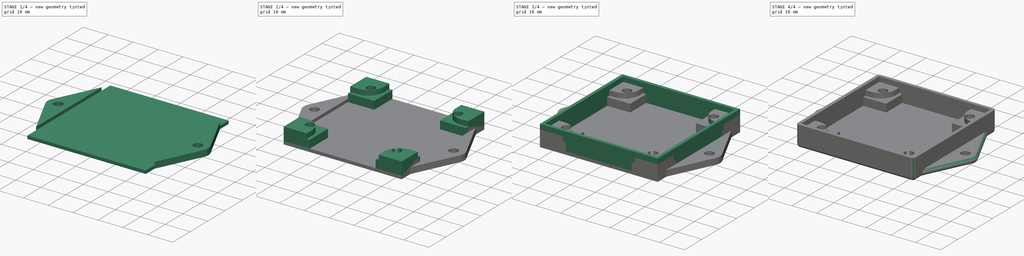
[diagram: build sequence overview — one tinted view per stage of 4, left to right]
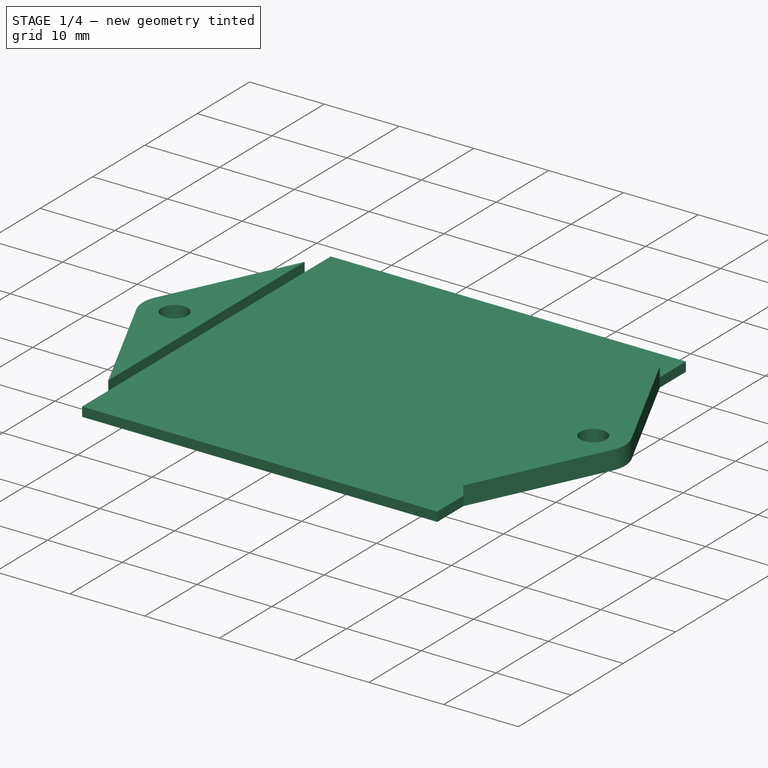
[diagram: stage 1 of 4 — iso view after this stage's code; geometry added in this stage tinted green]
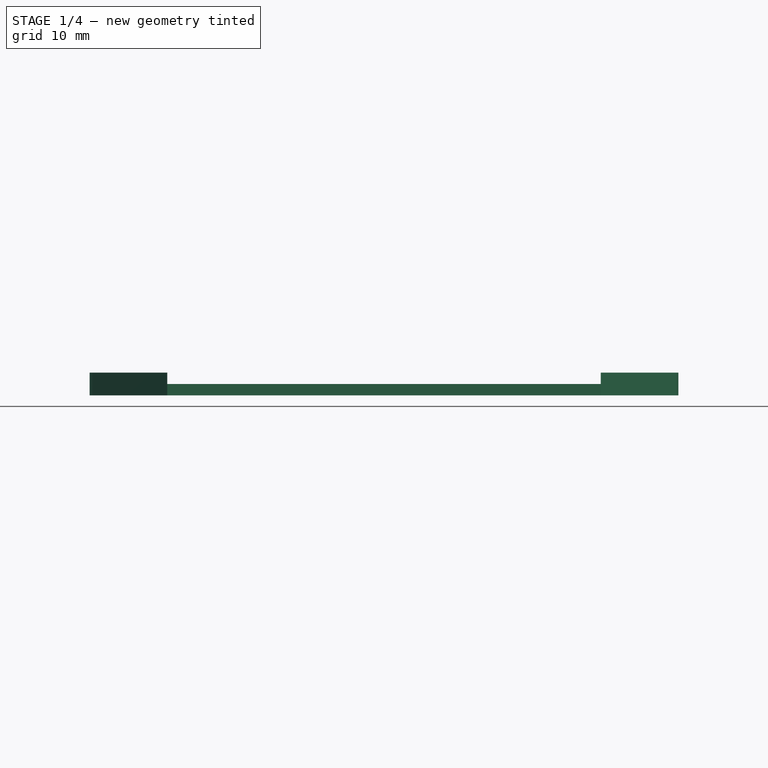
[diagram: stage 1 of 4 — front view after this stage's code; geometry added in this stage tinted green]
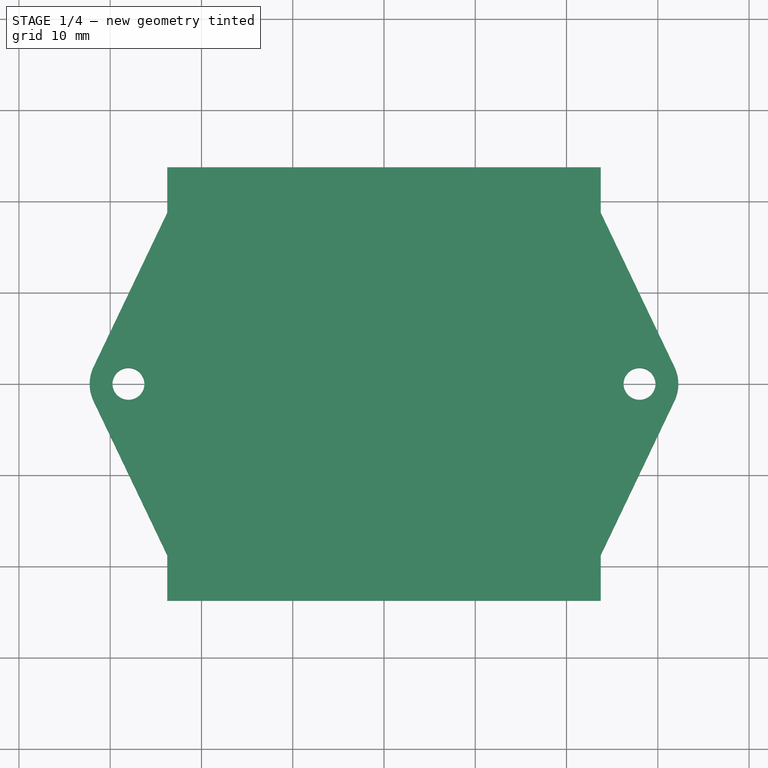
[diagram: stage 1 of 4 — top view after this stage's code; geometry added in this stage tinted green]
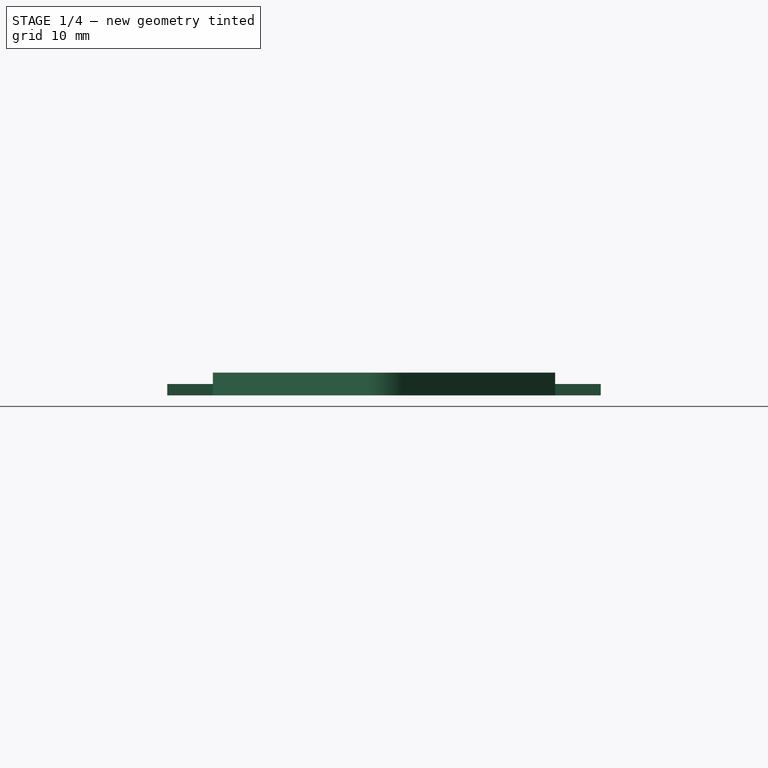
[diagram: stage 1 of 4 — right view after this stage's code; geometry added in this stage tinted green]
FCSTD DOCUMENT  (FreeCAD 0.16R6712 (Git))
Label: TPBox
License: All rights reserved
LicenseURL: http://en.wikipedia.org/wiki/All_rights_reserved
objects: Sketcher::SketchObject×7, PartDesign::Pad×5, PartDesign::Pocket×2, PartDesign::Fillet×2, Spreadsheet::Sheet×1, Part::MultiFuse×1
note: 24 computed .brp shape members not serialized (recipe doc carries the construction recipe); baked Part::Feature solids carry a one-line shape summary decoded from their .brp

FEATURE [Spreadsheet::Sheet] Spreadsheet  label="Data"
  cells = B2=WallThickness; C2(WallThickness)=1.25; B3=HoleDist_X; C3(HoleDist_X)=35; B4=HoleDist_Y; C4(HoleDist_Y)=35; B6=Margin_X; C6(Margin_X)=5; B7=Margin_Y; C7(Margin_Y)=5; B9=InnerHeight; C9(InnerHeight)=2; B10=ScrewHeadHeight; C10(ScrewHeadHeight)=3.2; B11=ScrewHeadRadius; C11(ScrewHeadRadius)=3; B12=ScrewHoleRadius; C12(ScrewHoleRadius)=1.75; B13=PanelElevation; C13(PanelElevation)=2
FEATURE [Sketcher::SketchObject] Sketch  label="Base"
  expr: Constraints[19] = Data.HoleDist_Y
  expr: Constraints[18] = Data.HoleDist_X
  expr: Constraints[10] = Data.HoleDist_Y + 2 * (Data.Margin_Y + Data.WallThickness)
  expr: Constraints[17] = Data.ScrewHoleRadius
  expr: Constraints[9] = Data.HoleDist_X + 2 * (Data.Margin_X + Data.WallThickness)
  sketch-geometry (8):
    g0: LineSegment StartX=-23.75 StartY=23.75 StartZ=0 EndX=23.75 EndY=23.75 EndZ=0
    g1: LineSegment StartX=23.75 StartY=23.75 StartZ=0 EndX=23.75 EndY=-23.75 EndZ=0
    g2: LineSegment StartX=23.75 StartY=-23.75 StartZ=0 EndX=-23.75 EndY=-23.75 EndZ=0
    g3: LineSegment StartX=-23.75 StartY=-23.75 StartZ=0 EndX=-23.75 EndY=23.75 EndZ=0
    g4: Circle [constr] CenterX=-17.5 CenterY=17.5 CenterZ=0 NormalX=0 NormalY=0 NormalZ=1 Radius=1.75
    g5: Circle [constr] CenterX=17.5 CenterY=17.5 CenterZ=0 NormalX=0 NormalY=0 NormalZ=1 Radius=1.75
    g6: Circle [constr] CenterX=-17.5 CenterY=-17.5 CenterZ=0 NormalX=0 NormalY=0 NormalZ=1 Radius=1.75
    g7: Circle [constr] CenterX=17.5 CenterY=-17.5 CenterZ=0 NormalX=0 NormalY=0 NormalZ=1 Radius=1.75
  constraints (20):
    c: Coincident(g0,g1)
    c: Coincident(g1,g2)
    c: Coincident(g2,g3)
    c: Coincident(g3,g0)
    c: Horizontal(g0)
    c: Horizontal(g2)
    c: Vertical(g1)
    c: Vertical(g3)
    c: Symmetric(g0,g1,g-1)
    c: DistanceX(g0,g0) = 47.5
    c: DistanceY(g3,g3) = 47.5
    c: Symmetric(g4,g7,g-1)
    c: Symmetric(g6,g5,g-1)
    c: Symmetric(g5,g4,g-2)
    c: Equal(g4,g5)
    c: Equal(g5,g7)
    c: Equal(g7,g6)
    c: Radius(g4) = 1.75
    c: DistanceX(g4,g5) = 35
    c: DistanceY(g6,g4) = 35
FEATURE [PartDesign::Pad] Pad
  Length = 1.25
  Length2 = 100
  Sketch = -> Sketch
  Type = 0
  expr: Length = Data.WallThickness
FEATURE [Sketcher::SketchObject] Sketch006  label="Flaps"
  expr: Constraints[23] = Data.ScrewHeadRadius + Data.WallThickness
  expr: Constraints[7] = Data.ScrewHeadRadius + Data.WallThickness
  expr: Constraints[4] = Data.HoleDist_Y + 2 * (Data.Margin_Y + Data.WallThickness)
  expr: Constraints[3] = Data.HoleDist_X + 2 * (Data.Margin_X + Data.WallThickness)
  sketch-geometry (13):
    g0: LineSegment [constr] StartX=23.75 StartY=23.75 StartZ=0 EndX=23.75 EndY=-23.75 EndZ=0
    g1: LineSegment [constr] StartX=-23.75 StartY=-23.75 StartZ=0 EndX=-23.75 EndY=23.75 EndZ=0
    g2: Circle CenterX=-28 CenterY=0 CenterZ=0 NormalX=0 NormalY=0 NormalZ=1 Radius=1.75
    g3: Circle CenterX=28 CenterY=0 CenterZ=0 NormalX=0 NormalY=0 NormalZ=1 Radius=1.75
    g4: LineSegment [constr] StartX=-23.75 StartY=23.75 StartZ=0 EndX=23.75 EndY=23.75 EndZ=0
    g5: LineSegment StartX=-23.75 StartY=18.75 StartZ=0 EndX=-31.8346 EndY=1.83252 EndZ=0
    g6: LineSegment StartX=-31.8346 StartY=-1.83252 StartZ=0 EndX=-23.75 EndY=-18.75 EndZ=0
    g7: LineSegment StartX=-23.75 StartY=-18.75 StartZ=0 EndX=-23.75 EndY=18.75 EndZ=0
    g8: ArcOfCircle CenterX=-28 CenterY=0 CenterZ=0 NormalX=0 NormalY=0 NormalZ=1 Radius=4.25 StartAngle=2.69579 EndAngle=3.58739
    g9: LineSegment StartX=23.75 StartY=18.75 StartZ=0 EndX=31.8346 EndY=1.83252 EndZ=0
    g10: LineSegment StartX=31.8346 StartY=-1.83252 StartZ=0 EndX=23.75 EndY=-18.75 EndZ=0
    g11: ArcOfCircle CenterX=28 CenterY=0 CenterZ=0 NormalX=0 NormalY=0 NormalZ=1 Radius=4.25 StartAngle=5.83738 EndAngle=6.72899
    g12: LineSegment StartX=23.75 StartY=18.75 StartZ=0 EndX=23.75 EndY=-18.75 EndZ=0
  constraints (36):
    c: Vertical(g0)
    c: Vertical(g1)
    c: Symmetric(g1,g0,g-1)
    c: DistanceX(g1,g0) = 47.5
    c: DistanceY(g1,g1) = 47.5
    c: PointOnObject(g2,g-1)
    c: Radius(g2) = 1.75
    c: DistanceX(g2,g1) = 4.25
    c: PointOnObject(g3,g-1)
    c: Equal(g2,g3)
    c: Coincident(g4,g1)
    c: Coincident(g4,g0)
    c: Horizontal(g4)
    c: Equal(g1,g0)
    c: PointOnObject(g5,g1)
    c: PointOnObject(g6,g1)
    c: Coincident(g6,g7)
    c: Coincident(g7,g5)
    c: Vertical(g7)
    c: Symmetric(g5,g6,g-1)
    c: Tangent(g5,g8) = -1.5708
    c: Tangent(g6,g8) = -1.5708
    c: Coincident(g2,g8)
    c: Radius(g8) = 4.25
    c: DistanceY(g5,g1) = 5
    c: PointOnObject(g10,g0)
    c: Symmetric(g10,g9,g-1)
    c: Tangent(g9,g11) = 1.5708
    c: Tangent(g10,g11) = 1.5708
    c: Equal(g11,g8)
    c: Symmetric(g5,g9,g-2)
    c: Coincident(g12,g9)
    c: Coincident(g12,g10)
    c: Vertical(g12)
    c: Coincident(g3,g11)
    c: Symmetric(g2,g3,g-2)
FEATURE [PartDesign::Pad] Pad004
  Length = 2.5
  Length2 = 100
  Sketch = -> Sketch006
  Type = 0
  expr: Length = Data.WallThickness * 2
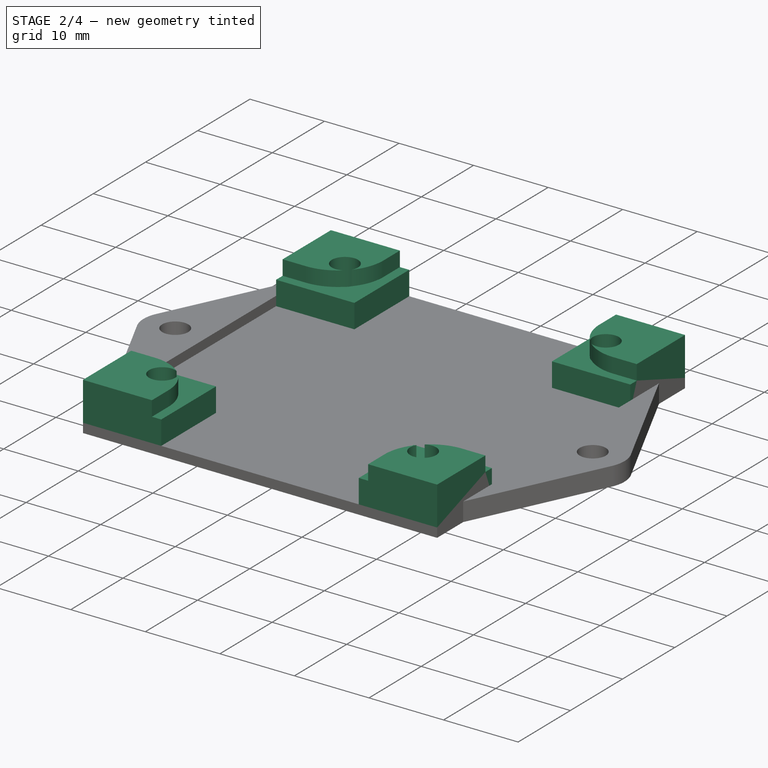
[diagram: stage 2 of 4 — iso view after this stage's code; geometry added in this stage tinted green]
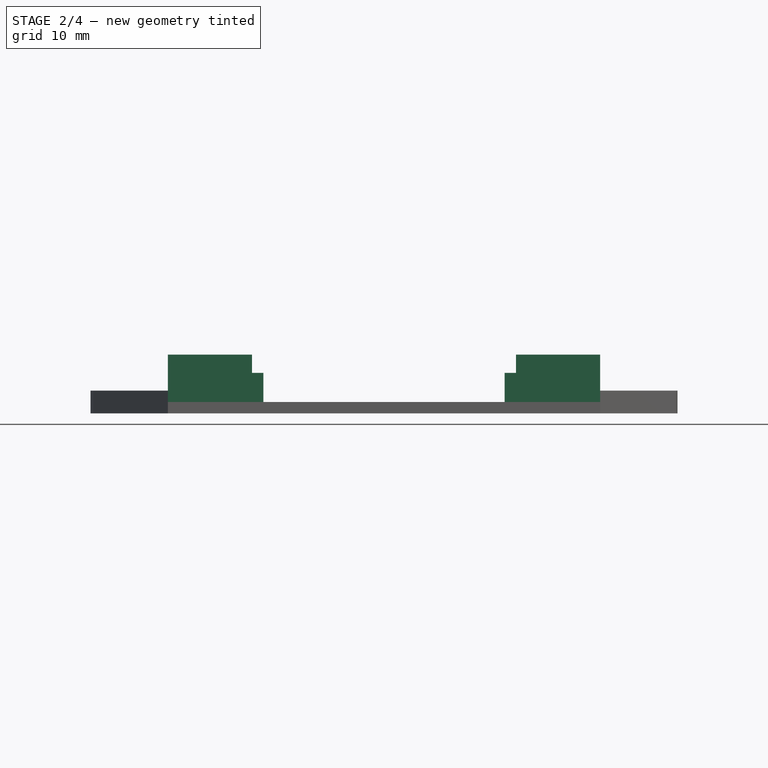
[diagram: stage 2 of 4 — front view after this stage's code; geometry added in this stage tinted green]
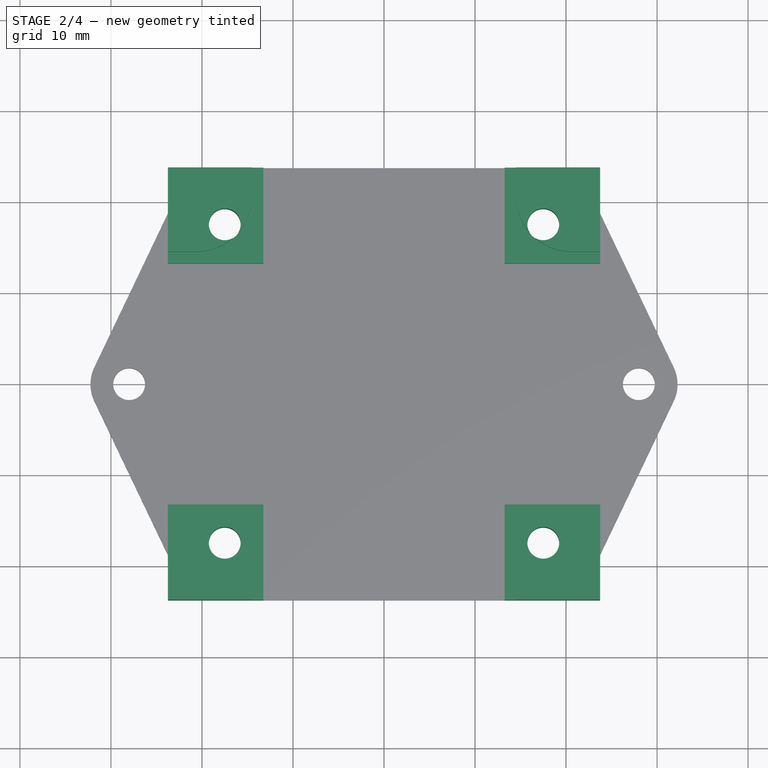
[diagram: stage 2 of 4 — top view after this stage's code; geometry added in this stage tinted green]
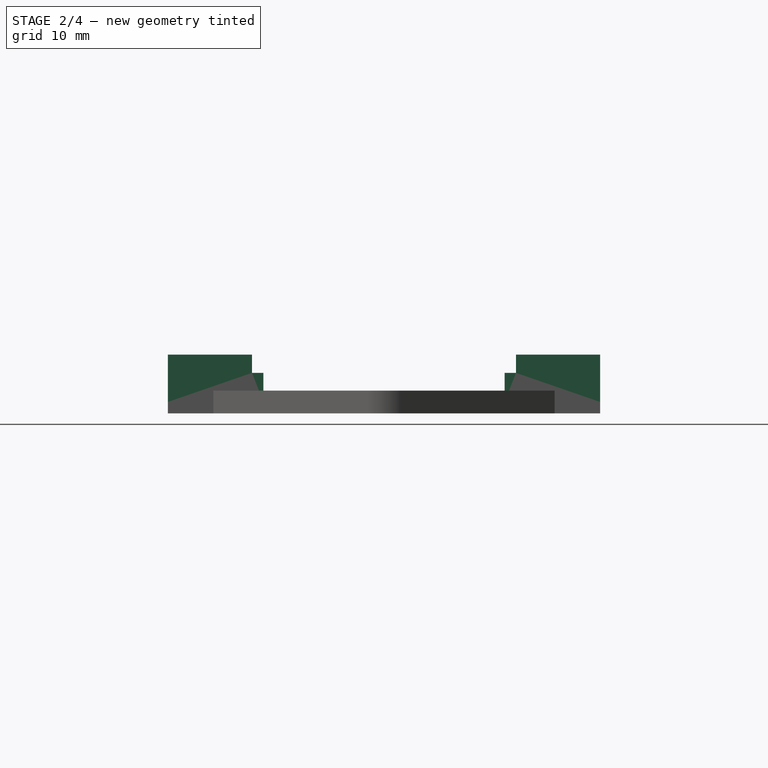
[diagram: stage 2 of 4 — right view after this stage's code; geometry added in this stage tinted green]
FEATURE [Sketcher::SketchObject] Sketch001  label="ScrewHeadHose"
  Placement = pos=(0,0,1.25) rot=(0,0,1;0rad)
  Support = -> Pad [Face6]
  expr: Constraints[56] = Data.WallThickness * 2 + Data.Margin_X + Data.ScrewHeadRadius
  expr: Constraints[19] = Data.HoleDist_Y
  expr: Constraints[18] = Data.HoleDist_X
  expr: Constraints[57] = Data.WallThickness * 2 + Data.Margin_Y + Data.ScrewHeadRadius
  expr: Constraints[10] = Data.HoleDist_Y + 2 * (Data.Margin_Y + Data.WallThickness)
  expr: Constraints[17] = Data.ScrewHoleRadius
  expr: Constraints[9] = Data.HoleDist_X + 2 * (Data.Margin_X + Data.WallThickness)
  sketch-geometry (24):
    g0: LineSegment [constr] StartX=-23.75 StartY=23.75 StartZ=0 EndX=23.75 EndY=23.75 EndZ=0
    g1: LineSegment [constr] StartX=23.75 StartY=23.75 StartZ=0 EndX=23.75 EndY=-23.75 EndZ=0
    g2: LineSegment [constr] StartX=23.75 StartY=-23.75 StartZ=0 EndX=-23.75 EndY=-23.75 EndZ=0
    g3: LineSegment [constr] StartX=-23.75 StartY=-23.75 StartZ=0 EndX=-23.75 EndY=23.75 EndZ=0
    g4: Circle [constr] CenterX=-17.5 CenterY=17.5 CenterZ=0 NormalX=0 NormalY=0 NormalZ=1 Radius=1.75
    g5: Circle [constr] CenterX=17.5 CenterY=17.5 CenterZ=0 NormalX=0 NormalY=0 NormalZ=1 Radius=1.75
    g6: Circle [constr] CenterX=-17.5 CenterY=-17.5 CenterZ=0 NormalX=0 NormalY=0 NormalZ=1 Radius=1.75
    g7: Circle [constr] CenterX=17.5 CenterY=-17.5 CenterZ=0 NormalX=0 NormalY=0 NormalZ=1 Radius=1.75
    g8: LineSegment StartX=-23.75 StartY=23.75 StartZ=0 EndX=-13.25 EndY=23.75 EndZ=0
    g9: LineSegment StartX=-13.25 StartY=23.75 StartZ=0 EndX=-13.25 EndY=13.25 EndZ=0
    g10: LineSegment StartX=-13.25 StartY=13.25 StartZ=0 EndX=-23.75 EndY=13.25 EndZ=0
    g11: LineSegment StartX=-23.75 StartY=13.25 StartZ=0 EndX=-23.75 EndY=23.75 EndZ=0
    g12: LineSegment StartX=23.75 StartY=23.75 StartZ=0 EndX=13.25 EndY=23.75 EndZ=0
    g13: LineSegment StartX=13.25 StartY=23.75 StartZ=0 EndX=13.25 EndY=13.25 EndZ=0
    g14: LineSegment StartX=13.25 StartY=13.25 StartZ=0 EndX=23.75 EndY=13.25 EndZ=0
    g15: LineSegment StartX=23.75 StartY=13.25 StartZ=0 EndX=23.75 EndY=23.75 EndZ=0
    g16: LineSegment StartX=23.75 StartY=-23.75 StartZ=0 EndX=13.25 EndY=-23.75 EndZ=0
    g17: LineSegment StartX=13.25 StartY=-23.75 StartZ=0 EndX=13.25 EndY=-13.25 EndZ=0
    g18: LineSegment StartX=13.25 StartY=-13.25 StartZ=0 EndX=23.75 EndY=-13.25 EndZ=0
    g19: LineSegment StartX=23.75 StartY=-13.25 StartZ=0 EndX=23.75 EndY=-23.75 EndZ=0
    g20: LineSegment StartX=-23.75 StartY=-23.75 StartZ=0 EndX=-13.25 EndY=-23.75 EndZ=0
    g21: LineSegment StartX=-13.25 StartY=-23.75 StartZ=0 EndX=-13.25 EndY=-13.25 EndZ=0
    g22: LineSegment StartX=-13.25 StartY=-13.25 StartZ=0 EndX=-23.75 EndY=-13.25 EndZ=0
    g23: LineSegment StartX=-23.75 StartY=-13.25 StartZ=0 EndX=-23.75 EndY=-23.75 EndZ=0
  constraints (64):
    c: Coincident(g0,g1)
    c: Coincident(g1,g2)
    c: Coincident(g2,g3)
    c: Coincident(g3,g0)
    c: Horizontal(g0)
    c: Horizontal(g2)
    c: Vertical(g1)
    c: Vertical(g3)
    c: Symmetric(g0,g1,g-1)
    c: DistanceX(g0,g0) = 47.5
    c: DistanceY(g3,g3) = 47.5
    c: Symmetric(g4,g7,g-1)
    c: Symmetric(g6,g5,g-1)
    c: Symmetric(g5,g4,g-2)
    c: Equal(g4,g5)
    c: Equal(g5,g7)
    c: Equal(g7,g6)
    c: Radius(g4) = 1.75
    c: DistanceX(g4,g5) = 35
    c: DistanceY(g6,g4) = 35
    c: Coincident(g8,g9)
    c: Coincident(g9,g10)
    c: Coincident(g10,g11)
    c: Coincident(g11,g8)
    c: Horizontal(g8)
    c: Horizontal(g10)
    c: Vertical(g9)
    c: Vertical(g11)
    c: Coincident(g8,g0)
    c: Coincident(g12,g13)
    c: Coincident(g13,g14)
    c: Coincident(g14,g15)
    c: Coincident(g15,g12)
    c: Horizontal(g12)
    c: Horizontal(g14)
    c: Vertical(g13)
    c: Vertical(g15)
    c: Coincident(g12,g0)
    c: Coincident(g16,g17)
    c: Coincident(g17,g18)
    c: Coincident(g18,g19)
    c: Coincident(g19,g16)
    c: Horizontal(g16)
    c: Horizontal(g18)
    c: Vertical(g17)
    c: Vertical(g19)
    c: Coincident(g16,g1)
    c: Coincident(g20,g21)
    c: Coincident(g21,g22)
    c: Coincident(g22,g23)
    c: Coincident(g23,g20)
    c: Horizontal(g20)
    c: Horizontal(g22)
    c: Vertical(g21)
    c: Vertical(g23)
    c: Coincident(g20,g2)
    c: DistanceX(g8,g8) = 10.5
    c: DistanceY(g11,g11) = 10.5
    c: Equal(g8,g12)
    c: Equal(g12,g16)
    c: Equal(g16,g20)
    c: Equal(g11,g15)
    c: Equal(g15,g19)
    c: Equal(g19,g23)
FEATURE [PartDesign::Pad] Pad001
  Length = 3.2
  Length2 = 100
  Sketch = -> Sketch001
  Type = 0
  expr: Length = Data.ScrewHeadHeight
FEATURE [Sketcher::SketchObject] Sketch002  label="PanelElevator"
  Placement = pos=(0,0,4.45) rot=(0,0,1;0rad)
  Support = -> Pad001 [Face15]
  expr: Constraints[62] = Data.ScrewHoleRadius * 3.5
  expr: Constraints[52] = Data.WallThickness * 2 + Data.Margin_X + Data.ScrewHoleRadius
  expr: Constraints[53] = Data.WallThickness * 2 + Data.Margin_Y + Data.ScrewHoleRadius
  expr: Constraints[17] = Data.ScrewHoleRadius
  expr: Constraints[9] = Data.HoleDist_X + 2 * (Data.Margin_X + Data.WallThickness)
  expr: Constraints[19] = Data.HoleDist_Y
  expr: Constraints[18] = Data.HoleDist_X
  expr: Constraints[10] = Data.HoleDist_Y + 2 * (Data.Margin_Y + Data.WallThickness)
  sketch-geometry (28):
    g0: LineSegment [constr] StartX=-23.75 StartY=23.75 StartZ=0 EndX=23.75 EndY=23.75 EndZ=0
    g1: LineSegment [constr] StartX=23.75 StartY=23.75 StartZ=0 EndX=23.75 EndY=-23.75 EndZ=0
    g2: LineSegment [constr] StartX=23.75 StartY=-23.75 StartZ=0 EndX=-23.75 EndY=-23.75 EndZ=0
    g3: LineSegment [constr] StartX=-23.75 StartY=-23.75 StartZ=0 EndX=-23.75 EndY=23.75 EndZ=0
    g4: Circle [constr] CenterX=-17.5 CenterY=17.5 CenterZ=0 NormalX=0 NormalY=0 NormalZ=1 Radius=1.75
    g5: Circle [constr] CenterX=17.5 CenterY=17.5 CenterZ=0 NormalX=0 NormalY=0 NormalZ=1 Radius=1.75
    g6: Circle [constr] CenterX=-17.5 CenterY=-17.5 CenterZ=0 NormalX=0 NormalY=0 NormalZ=1 Radius=1.75
    g7: Circle [constr] CenterX=17.5 CenterY=-17.5 CenterZ=0 NormalX=0 NormalY=0 NormalZ=1 Radius=1.75
    g8: LineSegment StartX=-23.75 StartY=23.75 StartZ=0 EndX=-14.5 EndY=23.75 EndZ=0
    g9: LineSegment StartX=-14.5 StartY=23.75 StartZ=0 EndX=-14.5 EndY=20.625 EndZ=0
    g10: LineSegment StartX=-20.625 StartY=14.5 StartZ=0 EndX=-23.75 EndY=14.5 EndZ=0
    g11: LineSegment StartX=-23.75 StartY=14.5 StartZ=0 EndX=-23.75 EndY=23.75 EndZ=0
    g12: LineSegment StartX=23.75 StartY=23.75 StartZ=0 EndX=14.5 EndY=23.75 EndZ=0
    g13: LineSegment StartX=14.5 StartY=23.75 StartZ=0 EndX=14.5 EndY=20.625 EndZ=0
    g14: LineSegment StartX=20.625 StartY=14.5 StartZ=0 EndX=23.75 EndY=14.5 EndZ=0
    g15: LineSegment StartX=23.75 StartY=14.5 StartZ=0 EndX=23.75 EndY=23.75 EndZ=0
    g16: LineSegment StartX=23.75 StartY=-23.75 StartZ=0 EndX=14.5 EndY=-23.75 EndZ=0
    g17: LineSegment StartX=14.5 StartY=-23.75 StartZ=0 EndX=14.5 EndY=-20.625 EndZ=0
    g18: LineSegment StartX=20.625 StartY=-14.5 StartZ=0 EndX=23.75 EndY=-14.5 EndZ=0
    g19: LineSegment StartX=23.75 StartY=-14.5 StartZ=0 EndX=23.75 EndY=-23.75 EndZ=0
    g20: LineSegment StartX=-23.75 StartY=-23.75 StartZ=0 EndX=-14.5 EndY=-23.75 EndZ=0
    g21: LineSegment StartX=-14.5 StartY=-23.75 StartZ=0 EndX=-14.5 EndY=-20.625 EndZ=0
    g22: LineSegment StartX=-20.625 StartY=-14.5 StartZ=0 EndX=-23.75 EndY=-14.5 EndZ=0
    g23: LineSegment StartX=-23.75 StartY=-14.5 StartZ=0 EndX=-23.75 EndY=-23.75 EndZ=0
    g24: ArcOfCircle CenterX=-20.625 CenterY=20.625 CenterZ=0 NormalX=0 NormalY=0 NormalZ=1 Radius=6.125 StartAngle=4.71239 EndAngle=6.28319
    g25: ArcOfCircle CenterX=20.625 CenterY=20.625 CenterZ=0 NormalX=0 NormalY=0 NormalZ=1 Radius=6.125 StartAngle=3.14159 EndAngle=4.71239
    g26: ArcOfCircle CenterX=-20.625 CenterY=-20.625 CenterZ=0 NormalX=0 NormalY=0 NormalZ=1 Radius=6.125 StartAngle=0 EndAngle=1.5708
    g27: ArcOfCircle CenterX=20.625 CenterY=-20.625 CenterZ=0 NormalX=0 NormalY=0 NormalZ=1 Radius=6.125 StartAngle=1.5708 EndAngle=3.14159
  constraints (72):
    c: Coincident(g0,g1)
    c: Coincident(g1,g2)
    c: Coincident(g2,g3)
    c: Coincident(g3,g0)
    c: Horizontal(g0)
    c: Horizontal(g2)
    c: Vertical(g1)
    c: Vertical(g3)
    c: Symmetric(g0,g1,g-1)
    c: DistanceX(g0,g0) = 47.5
    c: DistanceY(g3,g3) = 47.5
    c: Symmetric(g4,g7,g-1)
    c: Symmetric(g6,g5,g-1)
    c: Symmetric(g5,g4,g-2)
    c: Equal(g4,g5)
    c: Equal(g5,g7)
    c: Equal(g7,g6)
    c: Radius(g4) = 1.75
    c: DistanceX(g4,g5) = 35
    c: DistanceY(g6,g4) = 35
    c: Coincident(g8,g9)
    c: Coincident(g10,g11)
    c: Coincident(g11,g8)
    c: Horizontal(g8)
    c: Horizontal(g10)
    c: Vertical(g9)
    c: Vertical(g11)
    c: Coincident(g8,g0)
    c: Coincident(g12,g13)
    c: Coincident(g14,g15)
    c: Coincident(g15,g12)
    c: Horizontal(g12)
    c: Horizontal(g14)
    c: Vertical(g13)
    c: Vertical(g15)
    c: Coincident(g12,g0)
    c: Coincident(g16,g17)
    c: Coincident(g18,g19)
    c: Coincident(g19,g16)
    c: Horizontal(g16)
    c: Horizontal(g18)
    c: Vertical(g17)
    c: Vertical(g19)
    c: Coincident(g16,g1)
    c: Coincident(g20,g21)
    c: Coincident(g22,g23)
    c: Coincident(g23,g20)
    c: Horizontal(g20)
    c: Horizontal(g22)
    c: Vertical(g21)
    c: Vertical(g23)
    c: Coincident(g20,g2)
    c: DistanceX(g8,g8) = 9.25
    c: DistanceY(g11,g11) = 9.25
    c: Equal(g8,g12)
    c: Equal(g12,g16)
    c: Equal(g16,g20)
    c: Equal(g11,g15)
    c: Equal(g15,g19)
    c: Equal(g19,g23)
    c: Tangent(g9,g24) = 1.5708
    c: Tangent(g10,g24) = 1.5708
    c: Radius(g24) = 6.125
    c: Tangent(g13,g25) = -1.5708
    c: Tangent(g14,g25) = -1.5708
    c: Tangent(g21,g26) = -1.5708
    c: Tangent(g22,g26) = -1.5708
    c: Tangent(g17,g27) = 1.5708
    c: Tangent(g18,g27) = 1.5708
    c: Equal(g24,g25)
    c: Equal(g25,g26)
    c: Equal(g26,g27)
FEATURE [PartDesign::Pad] Pad002
  Length = 2
  Length2 = 100
  Sketch = -> Sketch002
  Type = 0
  expr: Length = Data.PanelElevation
FEATURE [Sketcher::SketchObject] Sketch003  label="ScrewHoles"
  Placement = pos=(0,0,6.45) rot=(0,0,1;0rad)
  Support = -> Pad002 [Face35]
  expr: Constraints[18] = Data.HoleDist_X
  expr: Constraints[17] = Data.ScrewHoleRadius
  expr: Constraints[9] = Data.HoleDist_X + 2 * (Data.Margin_X + Data.WallThickness)
  expr: Constraints[19] = Data.HoleDist_Y
  expr: Constraints[10] = Data.HoleDist_Y + 2 * (Data.Margin_Y + Data.WallThickness)
  sketch-geometry (8):
    g0: LineSegment [constr] StartX=-23.75 StartY=23.75 StartZ=0 EndX=23.75 EndY=23.75 EndZ=0
    g1: LineSegment [constr] StartX=23.75 StartY=23.75 StartZ=0 EndX=23.75 EndY=-23.75 EndZ=0
    g2: LineSegment [constr] StartX=23.75 StartY=-23.75 StartZ=0 EndX=-23.75 EndY=-23.75 EndZ=0
    g3: LineSegment [constr] StartX=-23.75 StartY=-23.75 StartZ=0 EndX=-23.75 EndY=23.75 EndZ=0
    g4: Circle CenterX=-17.5 CenterY=17.5 CenterZ=0 NormalX=0 NormalY=0 NormalZ=1 Radius=1.75
    g5: Circle CenterX=17.5 CenterY=17.5 CenterZ=0 NormalX=0 NormalY=0 NormalZ=1 Radius=1.75
    g6: Circle CenterX=-17.5 CenterY=-17.5 CenterZ=0 NormalX=0 NormalY=0 NormalZ=1 Radius=1.75
    g7: Circle CenterX=17.5 CenterY=-17.5 CenterZ=0 NormalX=0 NormalY=0 NormalZ=1 Radius=1.75
  constraints (20):
    c: Coincident(g0,g1)
    c: Coincident(g1,g2)
    c: Coincident(g2,g3)
    c: Coincident(g3,g0)
    c: Horizontal(g0)
    c: Horizontal(g2)
    c: Vertical(g1)
    c: Vertical(g3)
    c: Symmetric(g0,g1,g-1)
    c: DistanceX(g0,g0) = 47.5
    c: DistanceY(g3,g3) = 47.5
    c: Symmetric(g4,g7,g-1)
    c: Symmetric(g6,g5,g-1)
    c: Symmetric(g5,g4,g-2)
    c: Equal(g4,g5)
    c: Equal(g5,g7)
    c: Equal(g7,g6)
    c: Radius(g4) = 1.75
    c: DistanceX(g4,g5) = 35
    c: DistanceY(g6,g4) = 35
FEATURE [PartDesign::Pocket] Pocket
  Length = 5
  Sketch = -> Sketch003
  Type = 1
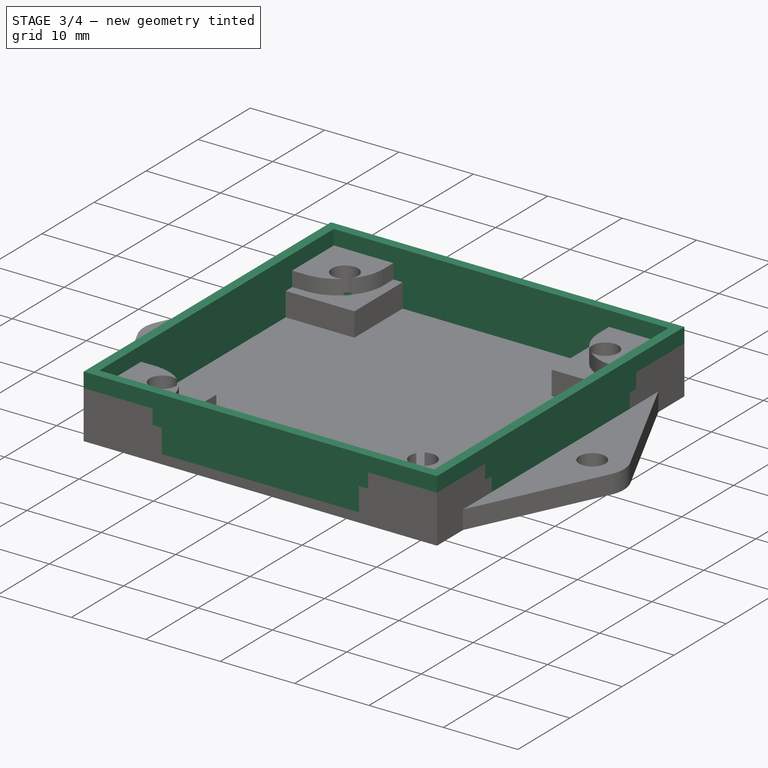
[diagram: stage 3 of 4 — iso view after this stage's code; geometry added in this stage tinted green]
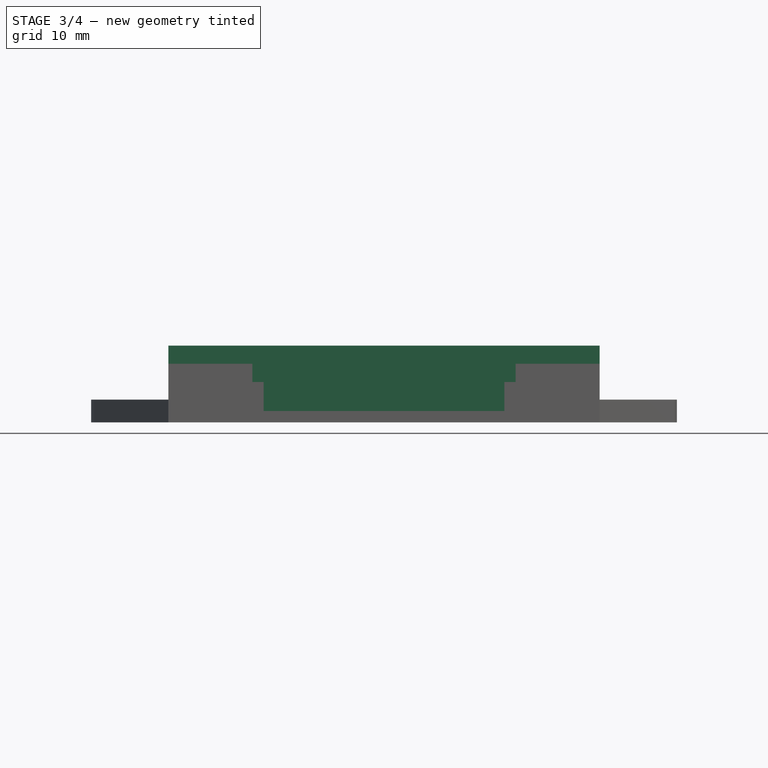
[diagram: stage 3 of 4 — front view after this stage's code; geometry added in this stage tinted green]
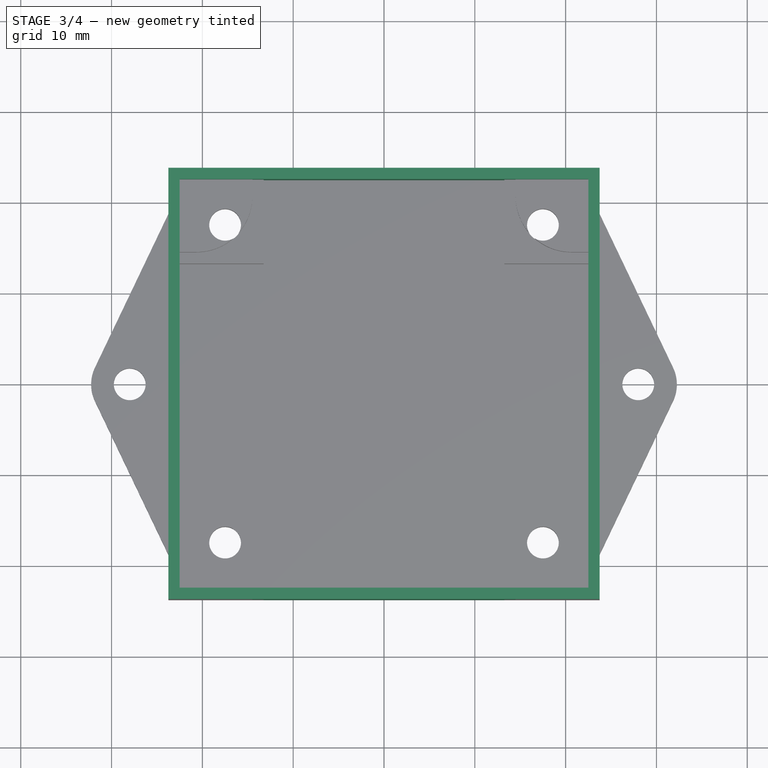
[diagram: stage 3 of 4 — top view after this stage's code; geometry added in this stage tinted green]
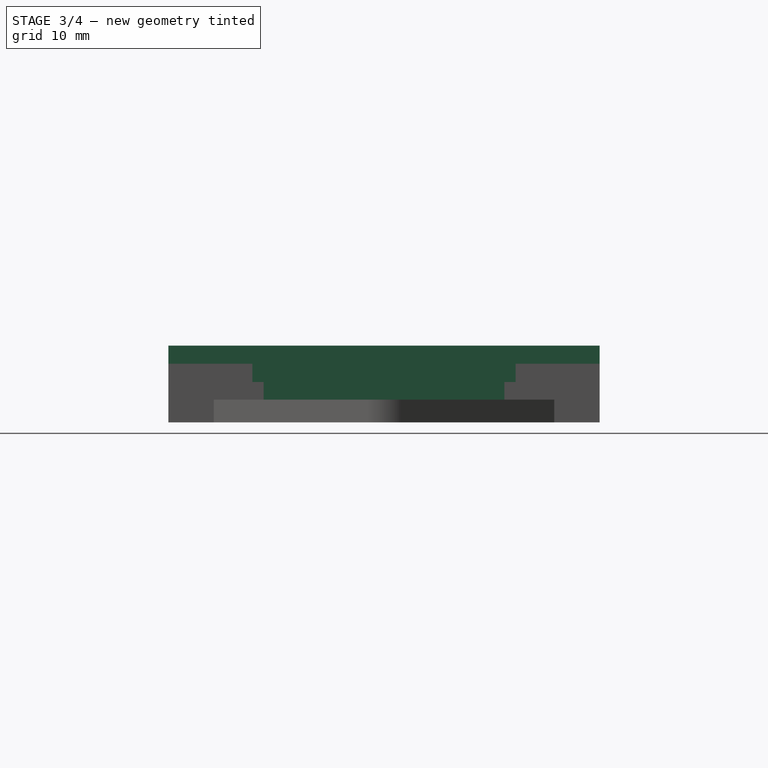
[diagram: stage 3 of 4 — right view after this stage's code; geometry added in this stage tinted green]
FEATURE [Sketcher::SketchObject] Sketch004  label="ScrewHeadHoles"
  Placement = pos=(0,0,0) rot=(1,0,0;3.14159rad)
  Support = -> Pocket [Face1]
  expr: Constraints[18] = Data.HoleDist_X
  expr: Constraints[17] = Data.ScrewHeadRadius
  expr: Constraints[9] = Data.HoleDist_X + 2 * (Data.Margin_X + Data.WallThickness)
  expr: Constraints[19] = Data.HoleDist_Y
  expr: Constraints[10] = Data.HoleDist_Y + 2 * (Data.Margin_Y + Data.WallThickness)
  sketch-geometry (8):
    g0: LineSegment [constr] StartX=-23.75 StartY=23.75 StartZ=0 EndX=23.75 EndY=23.75 EndZ=0
    g1: LineSegment [constr] StartX=23.75 StartY=23.75 StartZ=0 EndX=23.75 EndY=-23.75 EndZ=0
    g2: LineSegment [constr] StartX=23.75 StartY=-23.75 StartZ=0 EndX=-23.75 EndY=-23.75 EndZ=0
    g3: LineSegment [constr] StartX=-23.75 StartY=-23.75 StartZ=0 EndX=-23.75 EndY=23.75 EndZ=0
    g4: Circle CenterX=-17.5 CenterY=17.5 CenterZ=0 NormalX=0 NormalY=0 NormalZ=1 Radius=3
    g5: Circle CenterX=17.5 CenterY=17.5 CenterZ=0 NormalX=0 NormalY=0 NormalZ=1 Radius=3
    g6: Circle CenterX=-17.5 CenterY=-17.5 CenterZ=0 NormalX=0 NormalY=0 NormalZ=1 Radius=3
    g7: Circle CenterX=17.5 CenterY=-17.5 CenterZ=0 NormalX=0 NormalY=0 NormalZ=1 Radius=3
  constraints (20):
    c: Coincident(g0,g1)
    c: Coincident(g1,g2)
    c: Coincident(g2,g3)
    c: Coincident(g3,g0)
    c: Horizontal(g0)
    c: Horizontal(g2)
    c: Vertical(g1)
    c: Vertical(g3)
    c: Symmetric(g0,g1,g-1)
    c: DistanceX(g0,g0) = 47.5
    c: DistanceY(g3,g3) = 47.5
    c: Symmetric(g4,g7,g-1)
    c: Symmetric(g6,g5,g-1)
    c: Symmetric(g5,g4,g-2)
    c: Equal(g4,g5)
    c: Equal(g5,g7)
    c: Equal(g7,g6)
    c: Radius(g4) = 3
    c: DistanceX(g4,g5) = 35
    c: DistanceY(g6,g4) = 35
FEATURE [PartDesign::Pocket] Pocket001
  Length = 3.2
  Sketch = -> Sketch004
  Type = 0
  expr: Length = Data.ScrewHeadHeight
FEATURE [Sketcher::SketchObject] Sketch005  label="Walls"
  Placement = pos=(0,0,1.25) rot=(0,0,1;0rad)
  Support = -> Pocket001 [Face11]
  expr: Constraints[21] = Data.WallThickness
  expr: Constraints[20] = Data.WallThickness
  expr: Constraints[10] = Data.HoleDist_Y + 2 * (Data.Margin_Y + Data.WallThickness)
  expr: Constraints[9] = Data.HoleDist_X + 2 * (Data.Margin_X + Data.WallThickness)
  sketch-geometry (8):
    g0: LineSegment StartX=-23.75 StartY=23.75 StartZ=0 EndX=23.75 EndY=23.75 EndZ=0
    g1: LineSegment StartX=23.75 StartY=23.75 StartZ=0 EndX=23.75 EndY=-23.75 EndZ=0
    g2: LineSegment StartX=23.75 StartY=-23.75 StartZ=0 EndX=-23.75 EndY=-23.75 EndZ=0
    g3: LineSegment StartX=-23.75 StartY=-23.75 StartZ=0 EndX=-23.75 EndY=23.75 EndZ=0
    g4: LineSegment StartX=-22.5 StartY=22.5 StartZ=0 EndX=22.5 EndY=22.5 EndZ=0
    g5: LineSegment StartX=22.5 StartY=22.5 StartZ=0 EndX=22.5 EndY=-22.5 EndZ=0
    g6: LineSegment StartX=22.5 StartY=-22.5 StartZ=0 EndX=-22.5 EndY=-22.5 EndZ=0
    g7: LineSegment StartX=-22.5 StartY=-22.5 StartZ=0 EndX=-22.5 EndY=22.5 EndZ=0
  constraints (22):
    c: Coincident(g0,g1)
    c: Coincident(g1,g2)
    c: Coincident(g2,g3)
    c: Coincident(g3,g0)
    c: Horizontal(g0)
    c: Horizontal(g2)
    c: Vertical(g1)
    c: Vertical(g3)
    c: Symmetric(g0,g1,g-1)
    c: DistanceX(g0,g0) = 47.5
    c: DistanceY(g3,g3) = 47.5
    c: Coincident(g4,g5)
    c: Coincident(g5,g6)
    c: Coincident(g6,g7)
    c: Coincident(g7,g4)
    c: Horizontal(g4)
    c: Horizontal(g6)
    c: Vertical(g5)
    c: Vertical(g7)
    c: Symmetric(g4,g5,g-1)
    c: DistanceY(g4,g0) = 1.25
    c: DistanceX(g0,g4) = 1.25
FEATURE [PartDesign::Pad] Pad003
  Length = 7.2
  Length2 = 100
  Sketch = -> Sketch005
  Type = 0
  expr: Length = Data.ScrewHeadHeight + Data.PanelElevation + Data.InnerHeight
FEATURE [Part::MultiFuse] Fusion
  Shapes = -> [Pad004,Pad003]
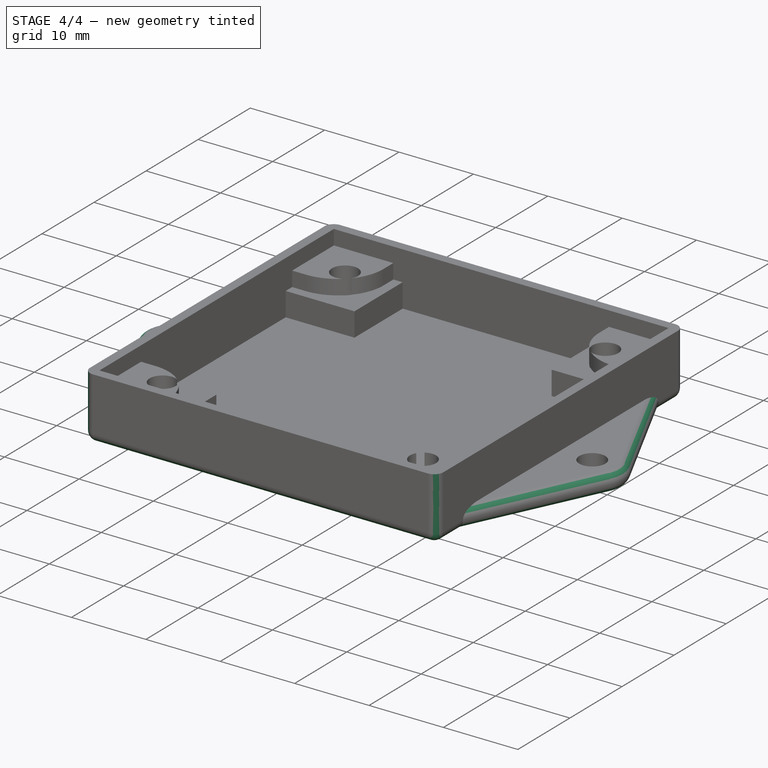
[diagram: stage 4 of 4 — iso view after this stage's code; geometry added in this stage tinted green]
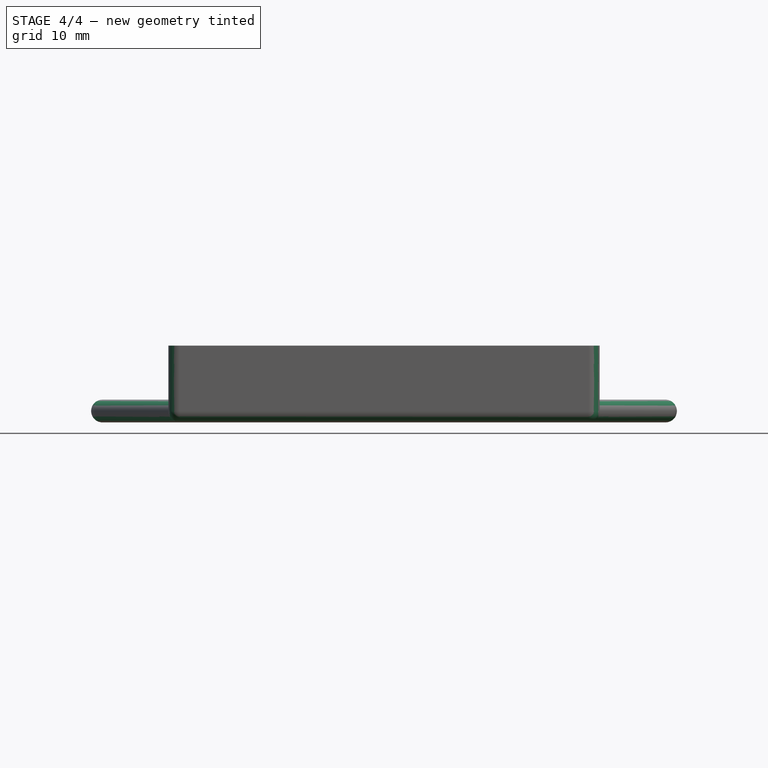
[diagram: stage 4 of 4 — front view after this stage's code; geometry added in this stage tinted green]
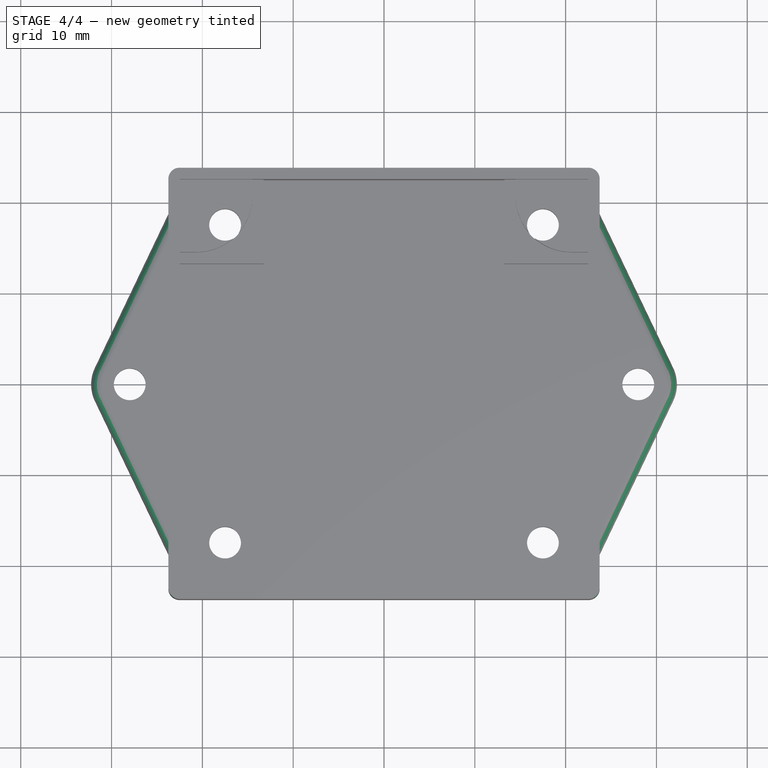
[diagram: stage 4 of 4 — top view after this stage's code; geometry added in this stage tinted green]
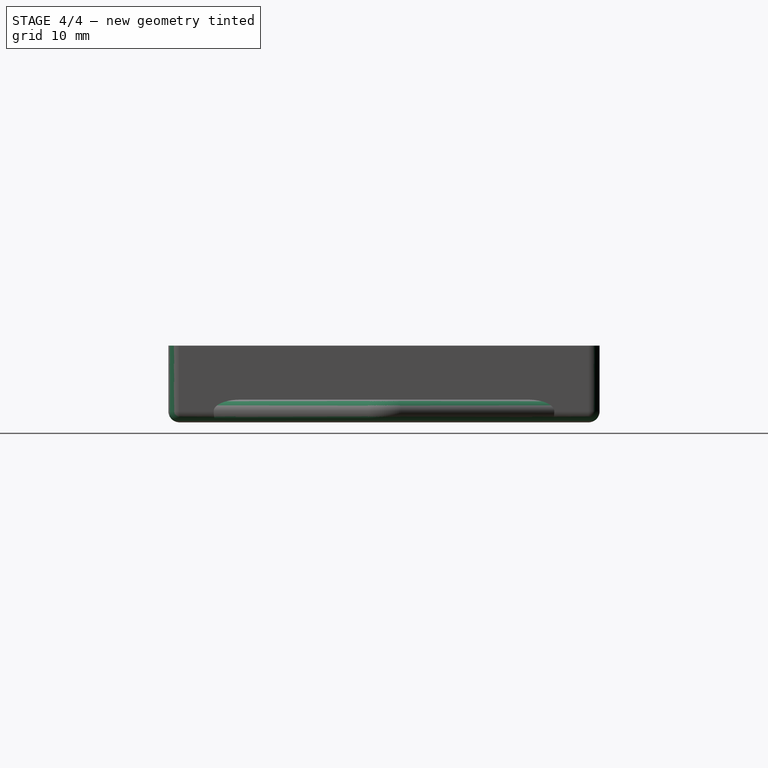
[diagram: stage 4 of 4 — right view after this stage's code; geometry added in this stage tinted green]
FEATURE [PartDesign::Fillet] Fillet
  Base = -> Fusion [Edge15,Edge14,Edge55,Edge110,Edge109,Edge72,Edge10,Edge4,Edge2,Edge7,Edge13,Edge44,Edge102,Edge54,Edge1]
  Radius = 1.24
  expr: Radius = Data.WallThickness - 0.01
FEATURE [PartDesign::Fillet] Fillet001
  Base = -> Fillet [Edge167,Edge86]
  Radius = 1.24
  expr: Radius = Data.WallThickness - 0.01
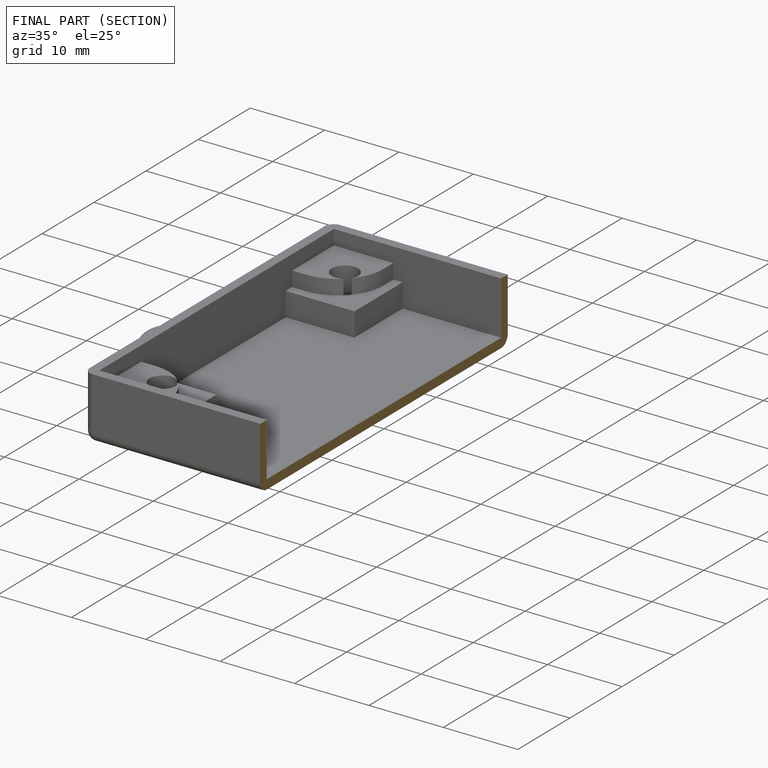
[diagram: finished part — half-section view (interior)]
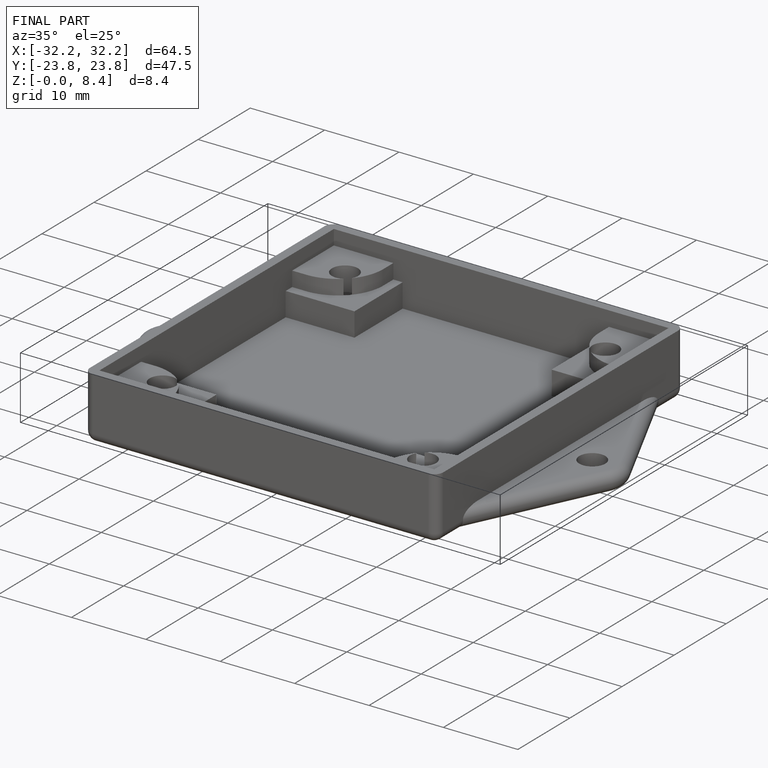
[diagram: finished part — iso view with bounding-box wireframe]
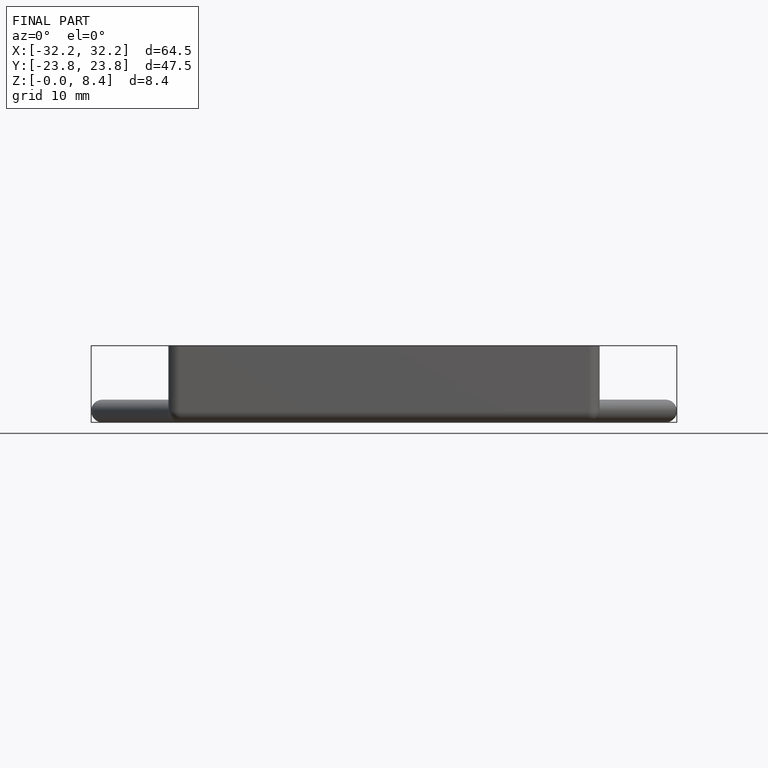
[diagram: finished part — front view with bounding-box wireframe]
